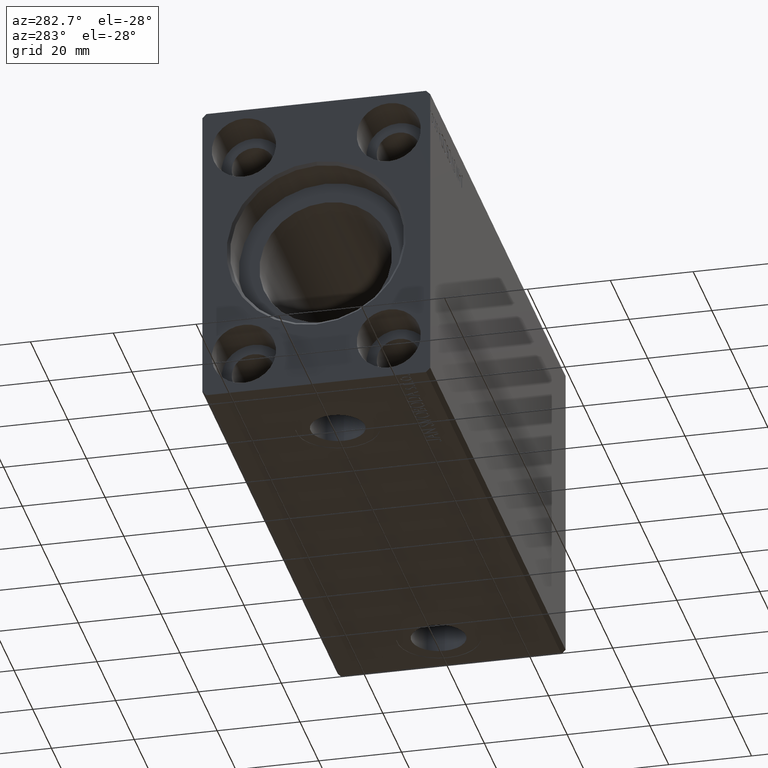
[diagram: clean part render]
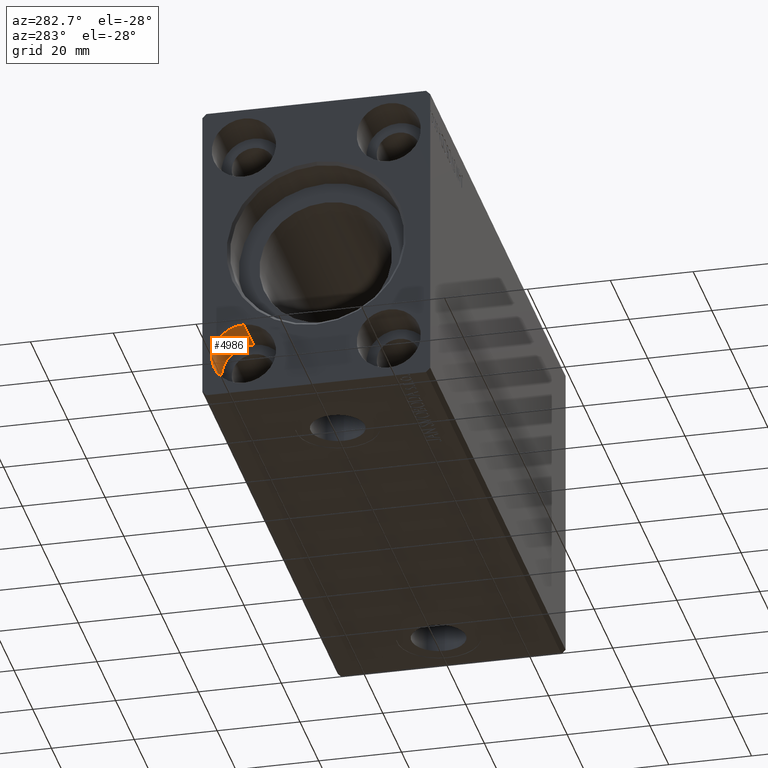
[diagram: same view with one face highlighted and labeled with its STEP entity id]
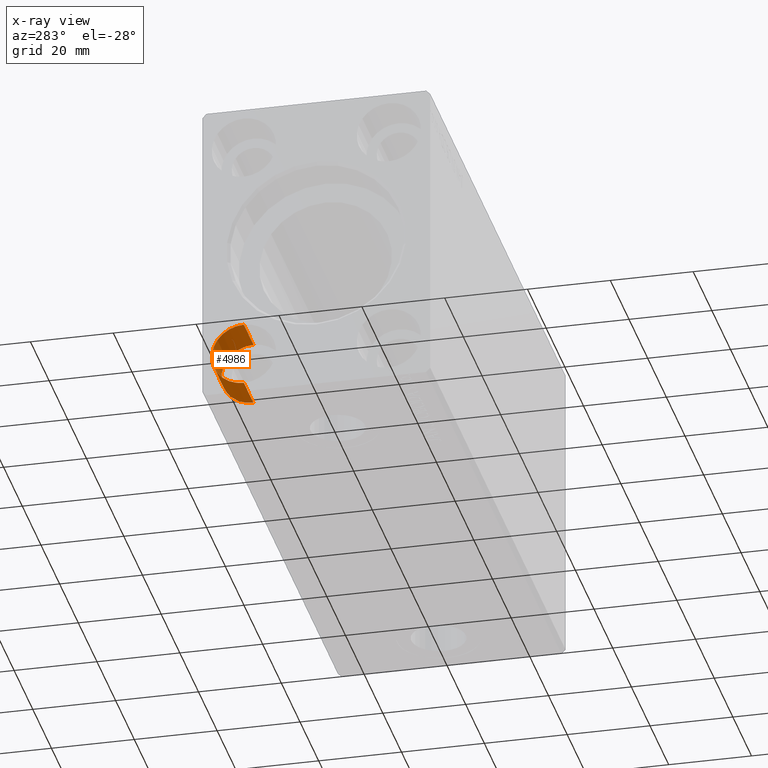
[diagram: x-ray of the same camera — body ghosted, the highlighted face saturated]
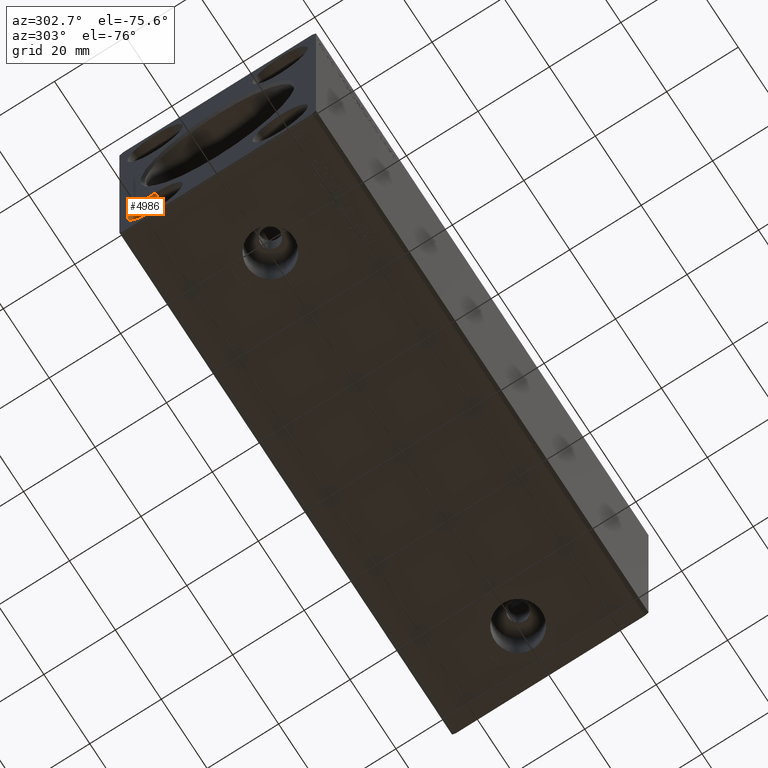
[diagram: same view with one face highlighted and labeled with its STEP entity id]
A machine part, auxiliary view. The second image highlights one B-rep face of the part: STEP entity #4986.
The next image is the same camera in x-ray: the body ghosted, the highlighted face saturated — about 0% of this face is hidden behind the body in this view.
A second angle (auxiliary view) of the same face is appended — the face is thin or edge-on in the first view.
In plain terms, the highlighted cylindrical surface (edge-blend (fillet) strip) has radius 7.75 mm, axis along (-1, -0, -0).
Its self-contained STEP definition (entity closure, byte-faithful):
#1348 = DIRECTION ( 'NONE',  ( -1.000000000000000000, -0.000000000000000000, -0.000000000000000000 ) ) ;
#3623 = DIRECTION ( 'NONE',  ( 0.000000000000000000, 0.000000000000000000, 1.000000000000000000 ) ) ;
#4391 = CARTESIAN_POINT ( 'NONE',  ( 10.33000000000000007, 17.50000000000000000, -35.25000000000000000 ) ) ;
#4986 = ADVANCED_FACE ( 'NONE', ( #12483 ), #25620, .F. ) ;
#7331 = EDGE_CURVE ( 'NONE', #30631, #19501, #41206, .T. ) ;
#7924 = CARTESIAN_POINT ( 'NONE',  ( 10.33000000000000007, 17.50000000000000000, -19.74999999999999645 ) ) ;
#8593 = VERTEX_POINT ( 'NONE', #12935 ) ;
#9853 = EDGE_CURVE ( 'NONE', #8593, #33509, #37571, .T. ) ;
#11148 = EDGE_CURVE ( 'NONE', #19501, #33509, #16594, .T. ) ;
#12483 = FACE_OUTER_BOUND ( 'NONE', #17944, .T. ) ;
#12905 = DIRECTION ( 'NONE',  ( -1.000000000000000000, -0.000000000000000000, -0.000000000000000000 ) ) ;
#12935 = CARTESIAN_POINT ( 'NONE',  ( 10.33000000000000007, 17.50000000000000000, -35.25000000000000000 ) ) ;
#15083 = DIRECTION ( 'NONE',  ( 0.000000000000000000, 0.000000000000000000, 1.000000000000000000 ) ) ;
#16208 = ORIENTED_EDGE ( 'NONE', *, *, #28163, .F. ) ;
#16594 = CIRCLE ( 'NONE', #35194, 7.750000000000003553 ) ;
#17944 = EDGE_LOOP ( 'NONE', ( #18931, #16208, #20562, #19196 ) ) ;
#18931 = ORIENTED_EDGE ( 'NONE', *, *, #9853, .F. ) ;
#19196 = ORIENTED_EDGE ( 'NONE', *, *, #11148, .T. ) ;
#19501 = VERTEX_POINT ( 'NONE', #31057 ) ;
#20562 = ORIENTED_EDGE ( 'NONE', *, *, #7331, .T. ) ;
#22955 = CARTESIAN_POINT ( 'NONE',  ( 0.000000000000000000, 17.50000000000000000, -35.25000000000000000 ) ) ;
#23083 = AXIS2_PLACEMENT_3D ( 'NONE', #34691, #24775, #15083 ) ;
#24775 = DIRECTION ( 'NONE',  ( -1.000000000000000000, 0.000000000000000000, 0.000000000000000000 ) ) ;
#24826 = AXIS2_PLACEMENT_3D ( 'NONE', #28644, #12905, #41784 ) ;
#25620 = CYLINDRICAL_SURFACE ( 'NONE', #24826, 7.750000000000003553 ) ;
#28163 = EDGE_CURVE ( 'NONE', #30631, #8593, #35464, .T. ) ;
#28644 = CARTESIAN_POINT ( 'NONE',  ( 10.33000000000000007, 17.50000000000000000, -27.50000000000000000 ) ) ;
#29082 = CARTESIAN_POINT ( 'NONE',  ( 0.000000000000000000, 17.50000000000000000, -27.50000000000000000 ) ) ;
#30631 = VERTEX_POINT ( 'NONE', #7924 ) ;
#31057 = CARTESIAN_POINT ( 'NONE',  ( 0.000000000000000000, 17.50000000000000000, -19.74999999999999645 ) ) ;
#33157 = DIRECTION ( 'NONE',  ( -1.000000000000000000, 0.000000000000000000, 0.000000000000000000 ) ) ;
#33509 = VERTEX_POINT ( 'NONE', #22955 ) ;
#34691 = CARTESIAN_POINT ( 'NONE',  ( 10.33000000000000007, 17.50000000000000000, -27.50000000000000000 ) ) ;
#35194 = AXIS2_PLACEMENT_3D ( 'NONE', #29082, #33157, #3623 ) ;
#35464 = CIRCLE ( 'NONE', #23083, 7.750000000000003553 ) ;
#37130 = CARTESIAN_POINT ( 'NONE',  ( 10.33000000000000007, 17.50000000000000000, -19.74999999999999645 ) ) ;
#37274 = VECTOR ( 'NONE', #40983, 1000.000000000000000 ) ;
#37571 = LINE ( 'NONE', #4391, #42036 ) ;
#40983 = DIRECTION ( 'NONE',  ( -1.000000000000000000, -0.000000000000000000, -0.000000000000000000 ) ) ;
#41206 = LINE ( 'NONE', #37130, #37274 ) ;
#41784 = DIRECTION ( 'NONE',  ( 0.000000000000000000, 0.000000000000000000, 1.000000000000000000 ) ) ;
#42036 = VECTOR ( 'NONE', #1348, 1000.000000000000000 ) ;